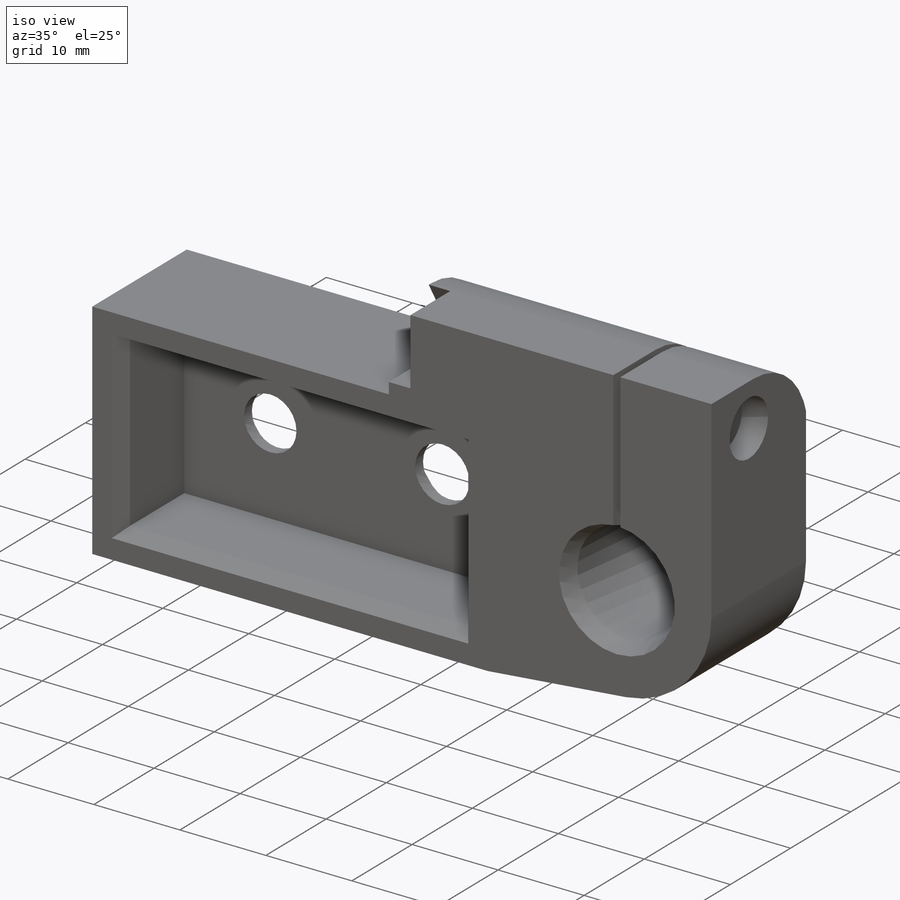
[diagram: iso view]
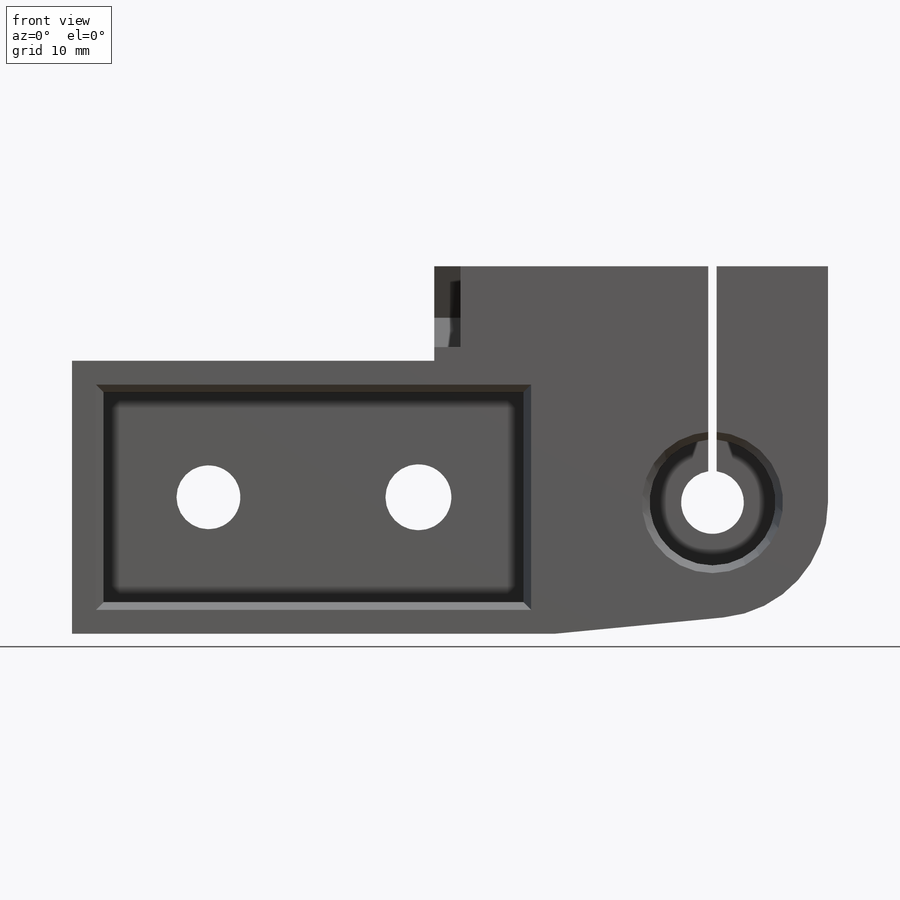
[diagram: front view]
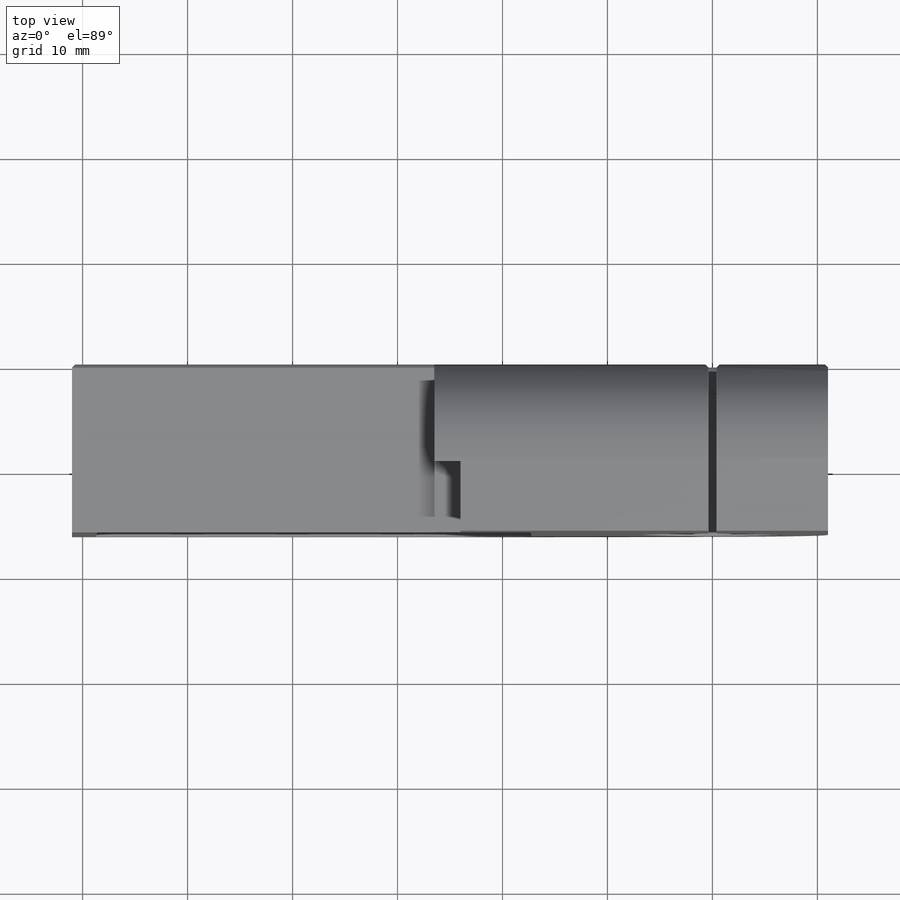
[diagram: top view]
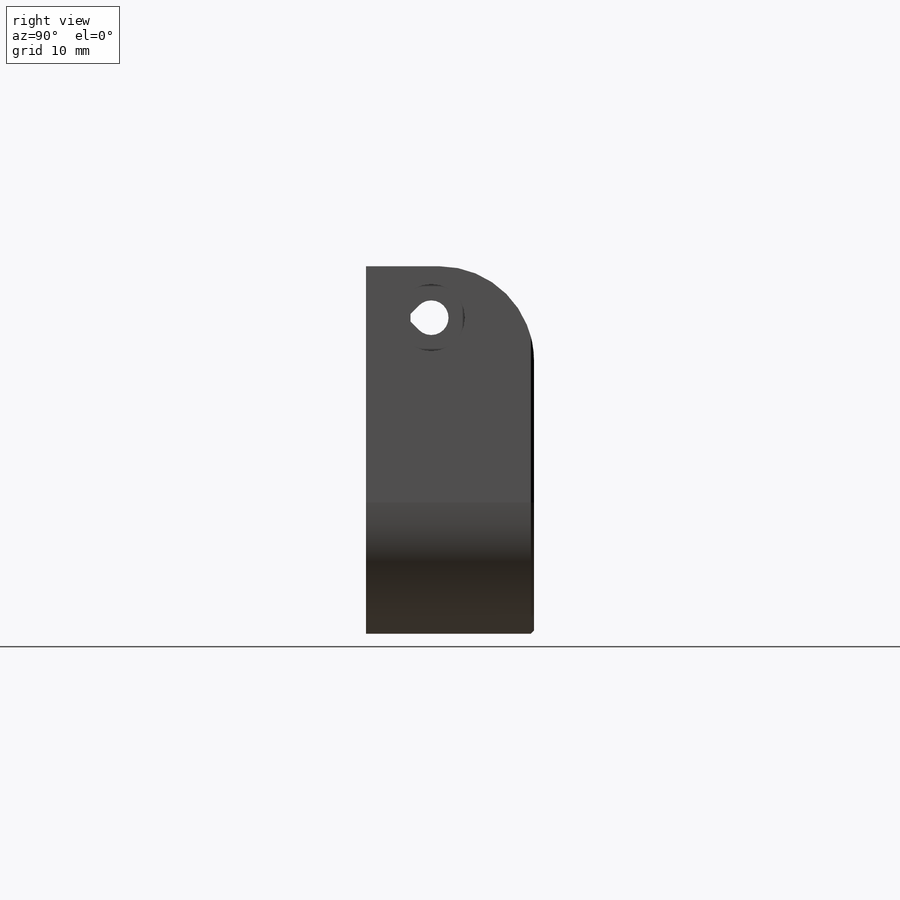
[diagram: right view]
SOLIDWORKS PART (.sldprt)
format: sldprt  version: not decoded by parser v0  size: 472,576 bytes
history: native  units: mm
features: sketch x11, cut_extrude x9, chamfer x4, extrude x2, fillet x2, material x1, pattern_circular x1 (+13 scaffold rows collapsed)
feature tree (43):
  scaffold x13  (default folders/planes/origin — collapsed)
  material  "Custom Plastic"
  sketch  "Sketch1"  dims[c1.D3=12.0mm c1.D4=12.0mm c1.D8=5.0mm c1.D10=6.3mm c1.D2=20.0mm c2.D4=5.0mm c2.D5=38.0mm c2.D6=0.5mm c2.D7=40.0mm c2.D9=20.0mm c2.D11=9.0mm c2.D12=37.5mm c2.D13=9.0mm c2.D1=3.0mm c2.D2=3.0mm]
  extrude  "Boss-Extrude1"  Depth=16mm
  sketch  "Sketch2"  dims[c1.D1=3.0mm c1.D2=3.0mm c1.D3=20.0mm c1.D4=40.0mm c2.D2=3.0mm]
  cut_extrude  "Cut-Extrude1"  Depth=5mm
  fillet  "Fillet2"  Radius=9mm
  sketch  "Sketch3"  dims[D1=12.0mm]
  cut_extrude  "Cut-Extrude2"  Depth=2.5mm
  sketch  "Sketch6"  dims[D4=3.0mm D3=0.8mm D1=0.4mm D2=0.4mm]
  cut_extrude  "Cut-Extrude5"  [1 undecoded]
  sketch  "Sketch7"  dims[D1=6.1mm]
  cut_extrude  "Cut-Extrude6"  [1 undecoded]
  sketch  "Sketch8"  dims[D1=1.1mm D2=7.0mm D3=1.0mm D4=5.9mm]
  extrude  "Boss-Extrude2"  [1 undecoded]
  pattern_circular  "CirPattern1"  Count=2 Angle=270deg
  fillet  "Fillet1"  Radius=0.8mm
  chamfer  "Chamfer2"  Distance=2mm Angle=20deg
  sketch  "Sketch10"  dims[D1=12.2mm]
  cut_extrude  "Cut-Extrude8"  Depth=0.7mm
  chamfer  "Chamfer3"  Distance=3mm Angle=45deg
  chamfer  "Chamfer4"  Distance=0.3mm Angle=45deg
  sketch  "Sketch11"  dims[D1=3.3mm D2=6.2mm D3=1.0mm]
  cut_extrude  "Cut-Extrude9"  [1 undecoded]
  sketch  "Sketch12"  dims[D1=6.4mm]
  cut_extrude  "Cut-Extrude10"  Depth=3mm
  sketch  "Sketch13"  dims[D1=5.6mm]
  cut_extrude  "Cut-Extrude11"  Depth=35mm
  chamfer  "Chamfer5"  Distance=2mm Angle=20deg
  sketch  "Sketch14"  dims[D1=0.32mm]
  cut_extrude  "Cut-Extrude12"  [1 undecoded]
decode coverage: 24 of 29 modeling features carry decoded parameters
note: 5 parameter values undecoded
summary: no parameter record found for 5 features
note: suppression state not decoded; provenance and decode notes live in map.json
